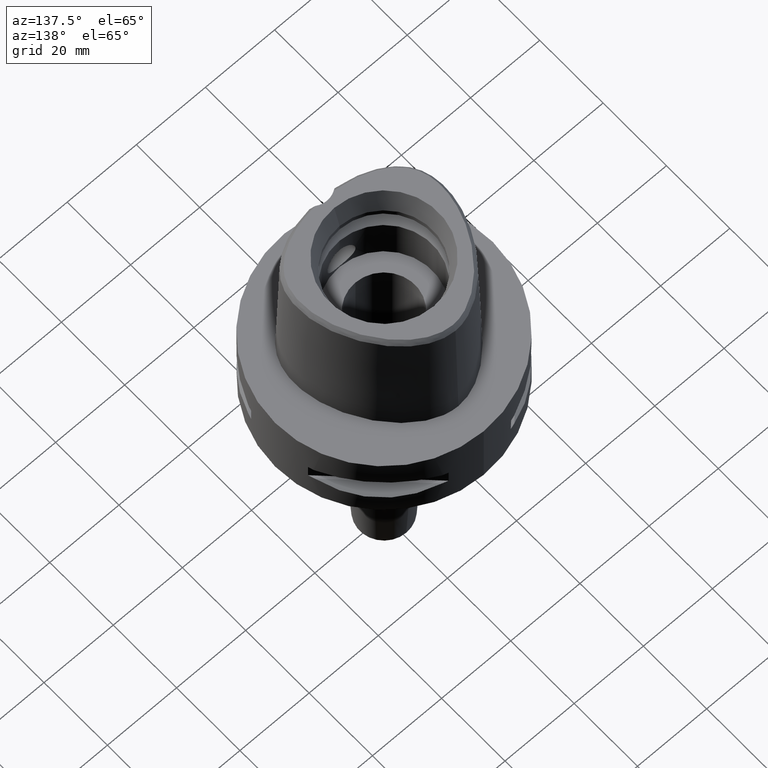
[diagram: clean part render]
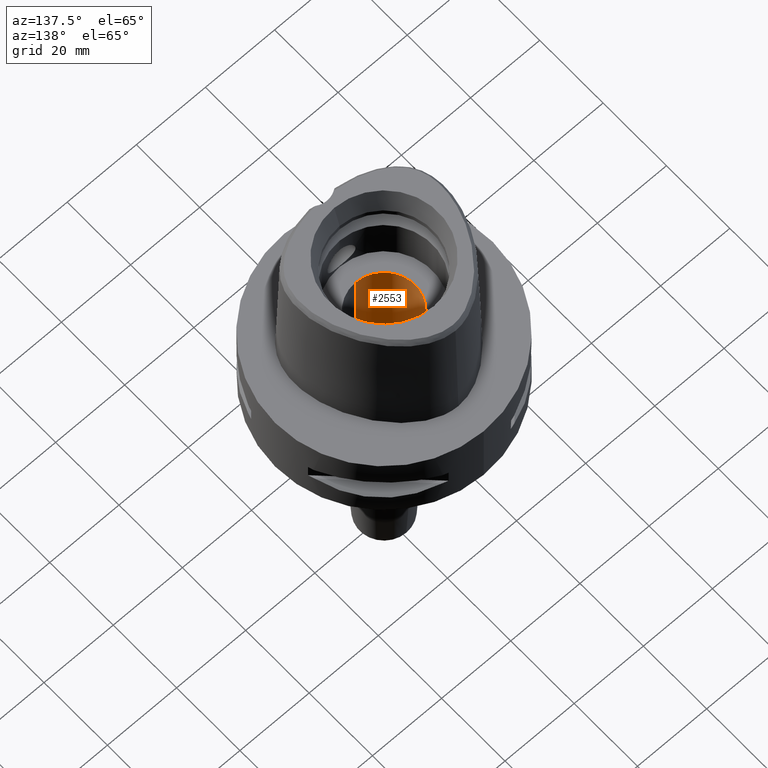
[diagram: same view with one face highlighted and labeled with its STEP entity id]
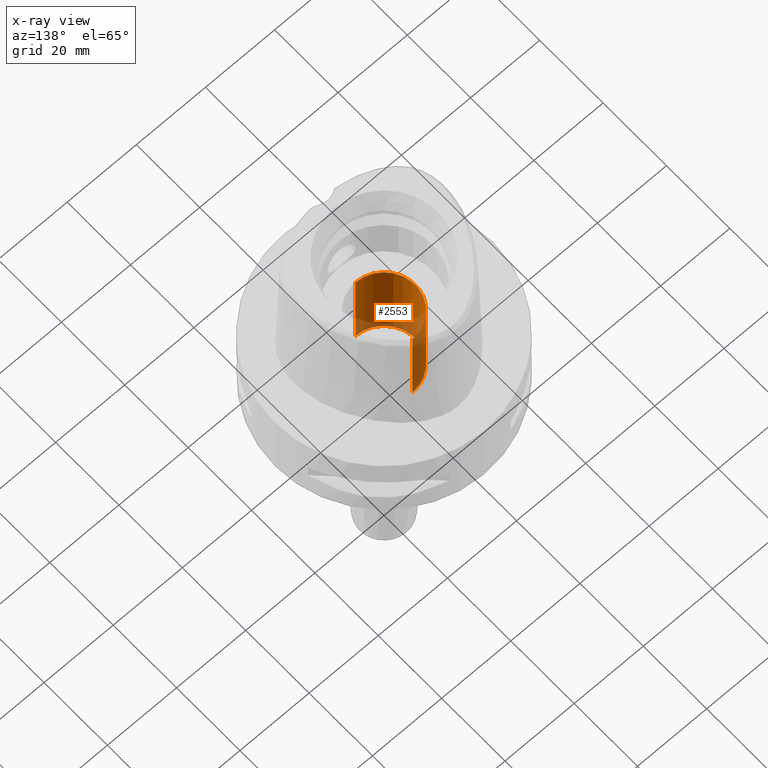
[diagram: x-ray of the same camera — body ghosted, the highlighted face saturated]
A machine part, auxiliary view. The second image highlights one B-rep face of the part: STEP entity #2553.
The next image is the same camera in x-ray: the body ghosted, the highlighted face saturated — about 31% of this face is hidden behind the body in this view.
In plain terms, the highlighted cylindrical surface (partial cylindrical patch) has radius 9 mm, axis along (0, 0, -1).
Its self-contained STEP definition (entity closure, byte-faithful):
#676=CARTESIAN_POINT('',(0.E0,0.E0,-1.6E1));
#677=DIRECTION('',(0.E0,0.E0,-1.E0));
#678=DIRECTION('',(0.E0,-1.E0,0.E0));
#679=AXIS2_PLACEMENT_3D('',#676,#677,#678);
#708=DIRECTION('',(0.E0,0.E0,-1.E0));
#709=VECTOR('',#708,2.7E1);
#710=CARTESIAN_POINT('',(0.E0,-9.E0,1.1E1));
#711=LINE('',#710,#709);
#715=DIRECTION('',(0.E0,0.E0,1.E0));
#716=VECTOR('',#715,2.7E1);
#717=CARTESIAN_POINT('',(0.E0,9.E0,-1.6E1));
#718=LINE('',#717,#716);
#738=CARTESIAN_POINT('',(0.E0,0.E0,1.1E1));
#739=DIRECTION('',(0.E0,0.E0,1.E0));
#740=DIRECTION('',(0.E0,1.E0,0.E0));
#741=AXIS2_PLACEMENT_3D('',#738,#739,#740);
#1528=CARTESIAN_POINT('',(0.E0,-9.E0,-1.6E1));
#1529=CARTESIAN_POINT('',(0.E0,9.E0,-1.6E1));
#1530=VERTEX_POINT('',#1528);
#1531=VERTEX_POINT('',#1529);
#1532=CARTESIAN_POINT('',(0.E0,9.E0,1.1E1));
#1533=VERTEX_POINT('',#1532);
#1534=CARTESIAN_POINT('',(0.E0,-9.E0,1.1E1));
#1535=VERTEX_POINT('',#1534);
#2539=CARTESIAN_POINT('',(0.E0,0.E0,3.99E1));
#2540=DIRECTION('',(0.E0,0.E0,-1.E0));
#2541=DIRECTION('',(0.E0,-1.E0,0.E0));
#2542=AXIS2_PLACEMENT_3D('',#2539,#2540,#2541);
#2543=CYLINDRICAL_SURFACE('',#2542,9.E0);
#2545=ORIENTED_EDGE('',*,*,#2544,.F.);
#2546=ORIENTED_EDGE('',*,*,#2528,.F.);
#2548=ORIENTED_EDGE('',*,*,#2547,.F.);
#2550=ORIENTED_EDGE('',*,*,#2549,.F.);
#2551=EDGE_LOOP('',(#2545,#2546,#2548,#2550));
#2552=FACE_OUTER_BOUND('',#2551,.F.);
#680=CIRCLE('',#679,9.E0);
#742=CIRCLE('',#741,9.E0);
#2528=EDGE_CURVE('',#1530,#1531,#680,.T.);
#2544=EDGE_CURVE('',#1531,#1533,#718,.T.);
#2547=EDGE_CURVE('',#1535,#1530,#711,.T.);
#2549=EDGE_CURVE('',#1533,#1535,#742,.T.);
#2553=ADVANCED_FACE('',(#2552),#2543,.F.);